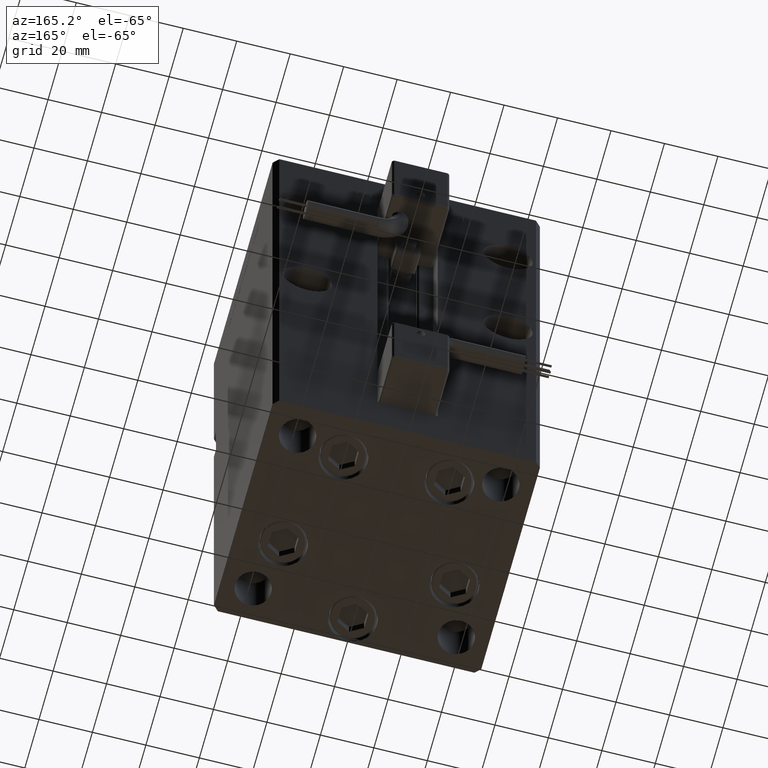
[diagram: clean part render]
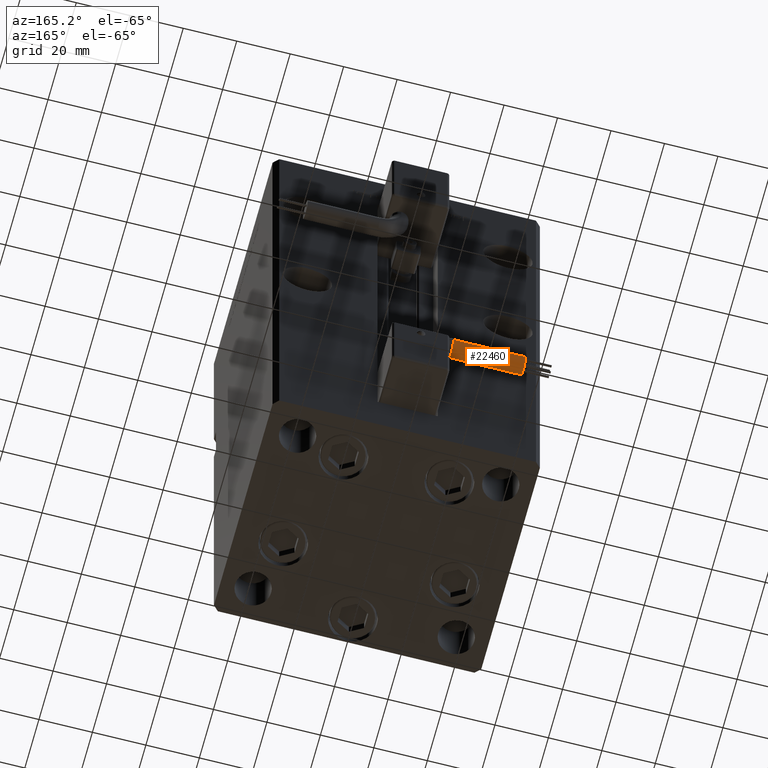
[diagram: same view with one face highlighted and labeled with its STEP entity id]
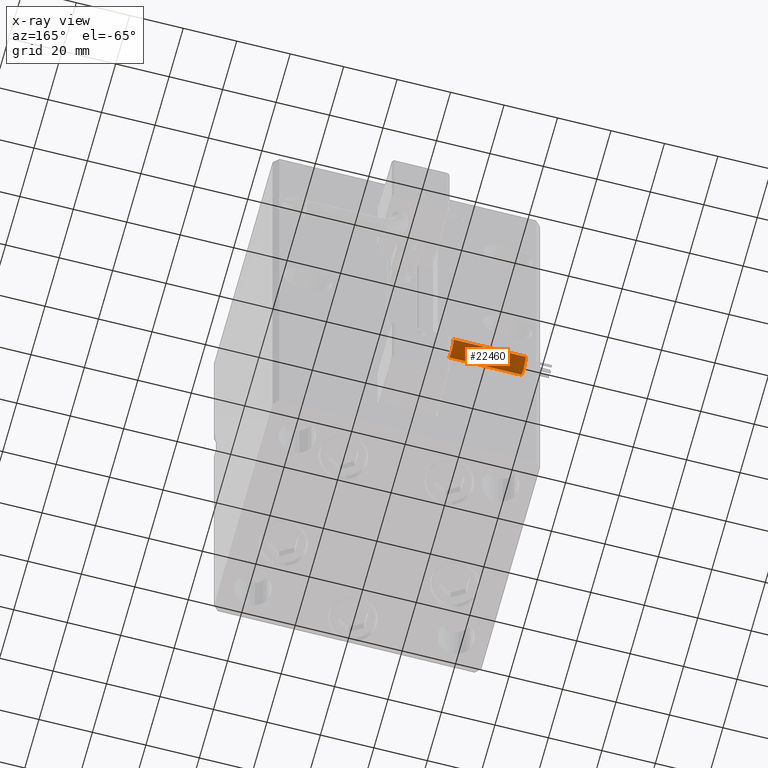
[diagram: x-ray of the same camera — body ghosted, the highlighted face saturated]
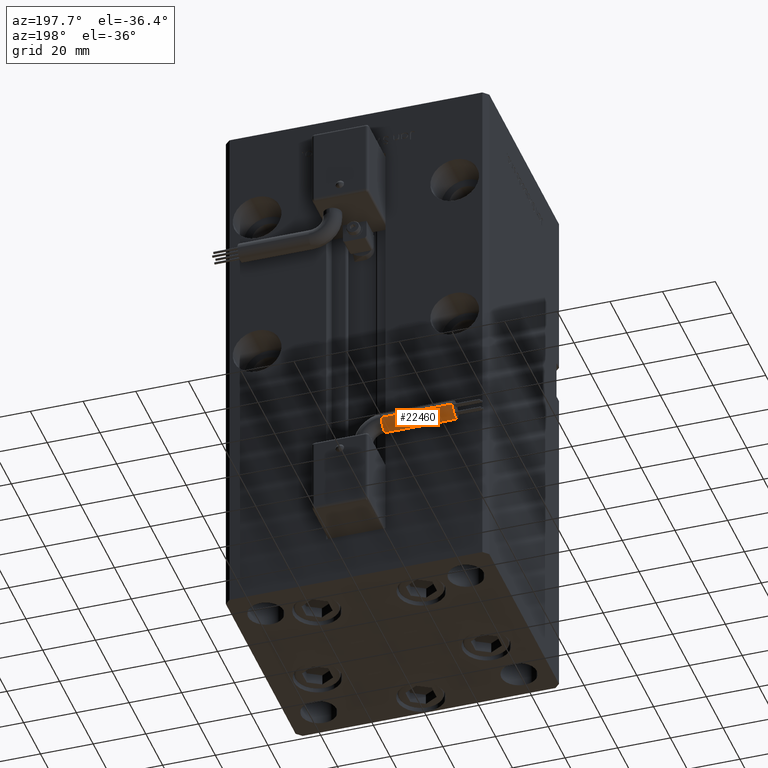
[diagram: same view with one face highlighted and labeled with its STEP entity id]
A machine part, auxiliary view. The second image highlights one B-rep face of the part: STEP entity #22460.
The next image is the same camera in x-ray: the body ghosted, the highlighted face saturated — about 0% of this face is hidden behind the body in this view.
A second angle (auxiliary view) of the same face is appended — the face is thin or edge-on in the first view.
In plain terms, the highlighted cylindrical surface (edge-blend (fillet) strip) has radius 3.5 mm, axis along (-1, -0, -0).
Its self-contained STEP definition (entity closure, byte-faithful):
#1752 = DIRECTION ( 'NONE',  ( 1.000000000000000000, 0.000000000000000000, 2.220446049250000002E-16 ) ) ;
#1862 = VECTOR ( 'NONE', #14091, 1000.000000000000000 ) ;
#2756 = EDGE_CURVE ( 'NONE', #49292, #3365, #23373, .T. ) ;
#3365 = VERTEX_POINT ( 'NONE', #18953 ) ;
#5356 = ORIENTED_EDGE ( 'NONE', *, *, #44601, .T. ) ;
#5755 = FACE_OUTER_BOUND ( 'NONE', #46499, .T. ) ;
#6931 = VECTOR ( 'NONE', #45605, 1000.000000000000000 ) ;
#8535 = CARTESIAN_POINT ( 'NONE',  ( 40.80000000000000426, 38.50000000000000000, -65.00000000000000000 ) ) ;
#9331 = VERTEX_POINT ( 'NONE', #14511 ) ;
#12007 = DIRECTION ( 'NONE',  ( 0.000000000000000000, 0.000000000000000000, -1.000000000000000000 ) ) ;
#13111 = CIRCLE ( 'NONE', #33117, 3.500000000000003109 ) ;
#14051 = AXIS2_PLACEMENT_3D ( 'NONE', #46493, #38213, #55619 ) ;
#14091 = DIRECTION ( 'NONE',  ( 1.000000000000000000, -2.599999999999999847E-16, 2.220446049250000002E-16 ) ) ;
#14127 = CIRCLE ( 'NONE', #32342, 3.500000000000003109 ) ;
#14511 = CARTESIAN_POINT ( 'NONE',  ( 13.79999999999999893, 41.99999999999999289, -61.50000000000000000 ) ) ;
#14696 = VERTEX_POINT ( 'NONE', #8535 ) ;
#14921 = LINE ( 'NONE', #27751, #1862 ) ;
#15655 = CARTESIAN_POINT ( 'NONE',  ( 13.80000000000000071, 45.50000000000000711, -65.00000000000000000 ) ) ;
#16024 = ORIENTED_EDGE ( 'NONE', *, *, #2756, .F. ) ;
#18953 = CARTESIAN_POINT ( 'NONE',  ( 40.80000000000000426, 45.50000000000000711, -65.00000000000000000 ) ) ;
#20560 = CARTESIAN_POINT ( 'NONE',  ( 13.79999999999999893, 42.00000000000000000, -65.00000000000000000 ) ) ;
#20727 = DIRECTION ( 'NONE',  ( 1.000000000000000000, 0.000000000000000000, 2.220446049250000002E-16 ) ) ;
#21514 = EDGE_CURVE ( 'NONE', #9331, #53726, #13111, .T. ) ;
#22460 = ADVANCED_FACE ( 'NONE', ( #5755 ), #53653, .T. ) ;
#23373 = LINE ( 'NONE', #15655, #6931 ) ;
#23425 = DIRECTION ( 'NONE',  ( 0.000000000000000000, 0.000000000000000000, -1.000000000000000000 ) ) ;
#24907 = EDGE_CURVE ( 'NONE', #3365, #14696, #14127, .T. ) ;
#27056 = AXIS2_PLACEMENT_3D ( 'NONE', #20560, #55344, #12007 ) ;
#27751 = CARTESIAN_POINT ( 'NONE',  ( 13.79999999999999716, 38.50000000000000000, -65.00000000000000000 ) ) ;
#30501 = ORIENTED_EDGE ( 'NONE', *, *, #21514, .T. ) ;
#32342 = AXIS2_PLACEMENT_3D ( 'NONE', #37533, #20727, #50655 ) ;
#33117 = AXIS2_PLACEMENT_3D ( 'NONE', #36232, #1752, #23425 ) ;
#33182 = EDGE_CURVE ( 'NONE', #49292, #9331, #50742, .T. ) ;
#35057 = CARTESIAN_POINT ( 'NONE',  ( 13.79999999999999893, 45.50000000000000711, -65.00000000000000000 ) ) ;
#35139 = ORIENTED_EDGE ( 'NONE', *, *, #24907, .F. ) ;
#36232 = CARTESIAN_POINT ( 'NONE',  ( 13.79999999999999893, 42.00000000000000000, -65.00000000000000000 ) ) ;
#37533 = CARTESIAN_POINT ( 'NONE',  ( 40.80000000000000426, 42.00000000000000000, -65.00000000000000000 ) ) ;
#38213 = DIRECTION ( 'NONE',  ( 1.000000000000000000, -2.599999999999999847E-16, 2.220446049250000002E-16 ) ) ;
#42886 = CARTESIAN_POINT ( 'NONE',  ( 13.79999999999999893, 38.50000000000000000, -65.00000000000000000 ) ) ;
#44601 = EDGE_CURVE ( 'NONE', #53726, #14696, #14921, .T. ) ;
#45605 = DIRECTION ( 'NONE',  ( 1.000000000000000000, -2.599999999999999847E-16, 2.220446049250000002E-16 ) ) ;
#46042 = ORIENTED_EDGE ( 'NONE', *, *, #33182, .T. ) ;
#46493 = CARTESIAN_POINT ( 'NONE',  ( 13.79999999999999893, 42.00000000000000000, -65.00000000000000000 ) ) ;
#46499 = EDGE_LOOP ( 'NONE', ( #16024, #46042, #30501, #5356, #35139 ) ) ;
#49292 = VERTEX_POINT ( 'NONE', #35057 ) ;
#50655 = DIRECTION ( 'NONE',  ( 0.000000000000000000, 0.000000000000000000, -1.000000000000000000 ) ) ;
#50742 = CIRCLE ( 'NONE', #27056, 3.500000000000003109 ) ;
#53653 = CYLINDRICAL_SURFACE ( 'NONE', #14051, 3.500000000000003109 ) ;
#53726 = VERTEX_POINT ( 'NONE', #42886 ) ;
#55344 = DIRECTION ( 'NONE',  ( 1.000000000000000000, 0.000000000000000000, 2.220446049250000002E-16 ) ) ;
#55619 = DIRECTION ( 'NONE',  ( -4.956352788505158337E-16, -1.000000000000000000, 0.000000000000000000 ) ) ;